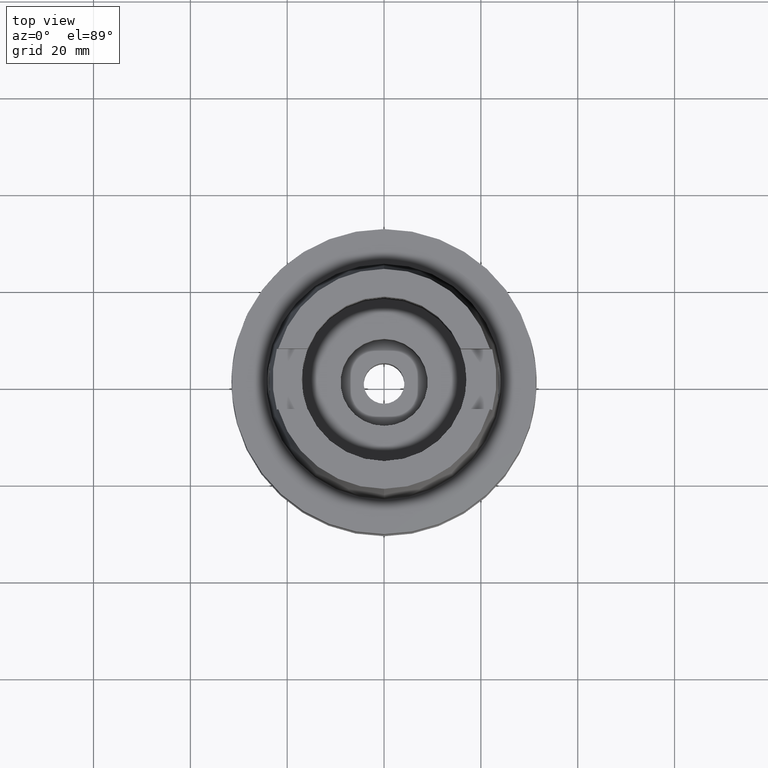
[diagram: clean part render]
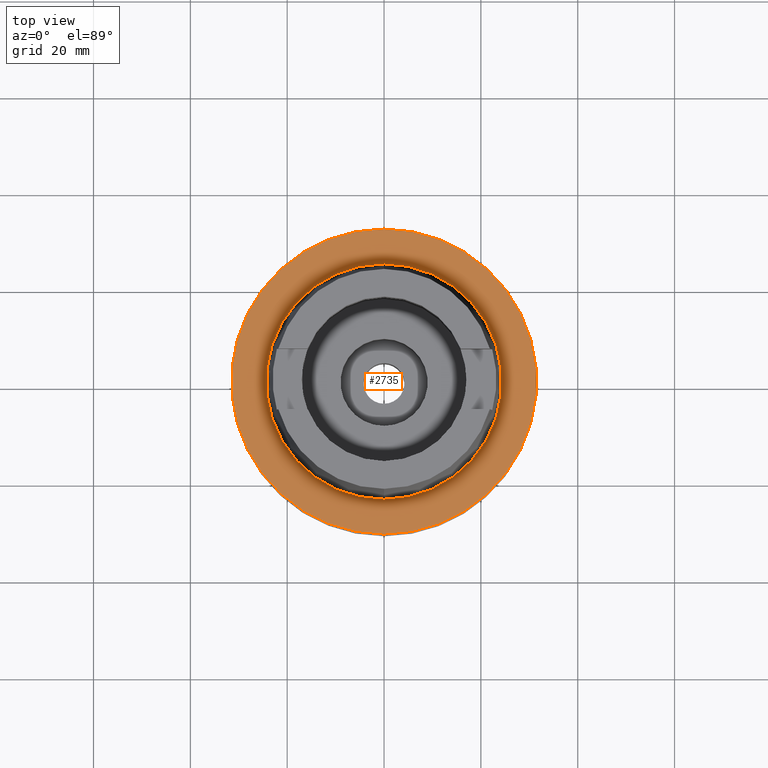
[diagram: same view with one face highlighted and labeled with its STEP entity id]
A machine part, top view. The second image highlights one B-rep face of the part: STEP entity #2735.
In plain terms, the highlighted planar face has unit normal (0, 0, 1).
Its self-contained STEP definition (entity closure, byte-faithful):
#342=CARTESIAN_POINT('',(0.E0,0.E0,3.268496584496E-13));
#343=DIRECTION('',(0.E0,0.E0,-1.E0));
#344=DIRECTION('',(0.E0,-1.E0,0.E0));
#345=AXIS2_PLACEMENT_3D('',#342,#343,#344);
#350=CARTESIAN_POINT('',(0.E0,0.E0,3.268496584496E-13));
#351=DIRECTION('',(0.E0,0.E0,-1.E0));
#352=DIRECTION('',(0.E0,1.E0,0.E0));
#353=AXIS2_PLACEMENT_3D('',#350,#351,#352);
#358=CARTESIAN_POINT('',(0.E0,0.E0,-6.821210263297E-13));
#359=DIRECTION('',(0.E0,0.E0,1.E0));
#360=DIRECTION('',(0.E0,-1.E0,0.E0));
#361=AXIS2_PLACEMENT_3D('',#358,#359,#360);
#366=CARTESIAN_POINT('',(0.E0,0.E0,-6.821210263297E-13));
#367=DIRECTION('',(0.E0,0.E0,1.E0));
#368=DIRECTION('',(0.E0,1.E0,0.E0));
#369=AXIS2_PLACEMENT_3D('',#366,#367,#368);
#2209=CARTESIAN_POINT('',(0.E0,-2.431503482329E1,-3.410605131648E-13));
#2210=VERTEX_POINT('',#2209);
#2211=CARTESIAN_POINT('',(0.E0,2.431503482329E1,-6.821210263297E-13));
#2212=VERTEX_POINT('',#2211);
#2485=CARTESIAN_POINT('',(0.E0,3.15E1,1.705302565824E-13));
#2486=VERTEX_POINT('',#2485);
#2487=CARTESIAN_POINT('',(0.E0,-3.15E1,3.268496584496E-13));
#2488=VERTEX_POINT('',#2487);
#2720=CARTESIAN_POINT('',(0.E0,0.E0,0.E0));
#2721=DIRECTION('',(0.E0,0.E0,1.E0));
#2722=DIRECTION('',(0.E0,1.E0,0.E0));
#2723=AXIS2_PLACEMENT_3D('',#2720,#2721,#2722);
#2724=PLANE('',#2723);
#2726=ORIENTED_EDGE('',*,*,#2725,.T.);
#2728=ORIENTED_EDGE('',*,*,#2727,.T.);
#2729=EDGE_LOOP('',(#2726,#2728));
#2730=FACE_OUTER_BOUND('',#2729,.F.);
#2731=ORIENTED_EDGE('',*,*,#2707,.T.);
#2732=ORIENTED_EDGE('',*,*,#2683,.T.);
#2733=EDGE_LOOP('',(#2731,#2732));
#2734=FACE_BOUND('',#2733,.F.);
#346=CIRCLE('',#345,3.15E1);
#354=CIRCLE('',#353,3.15E1);
#362=CIRCLE('',#361,2.431503482329E1);
#370=CIRCLE('',#369,2.431503482329E1);
#2683=EDGE_CURVE('',#2212,#2210,#370,.T.);
#2707=EDGE_CURVE('',#2210,#2212,#362,.T.);
#2725=EDGE_CURVE('',#2488,#2486,#346,.T.);
#2727=EDGE_CURVE('',#2486,#2488,#354,.T.);
#2735=ADVANCED_FACE('',(#2730,#2734),#2724,.T.);